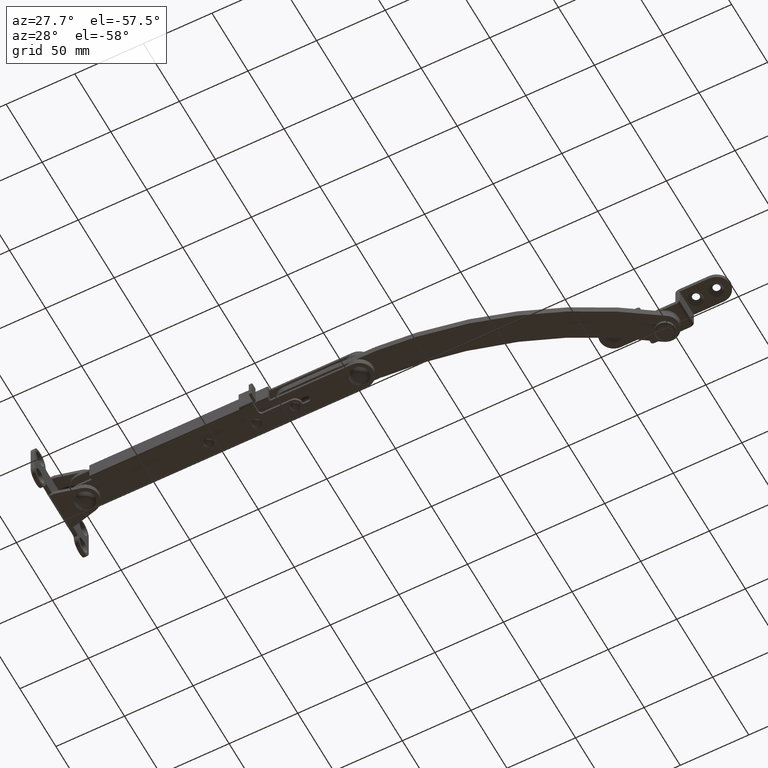
[diagram: clean part render]
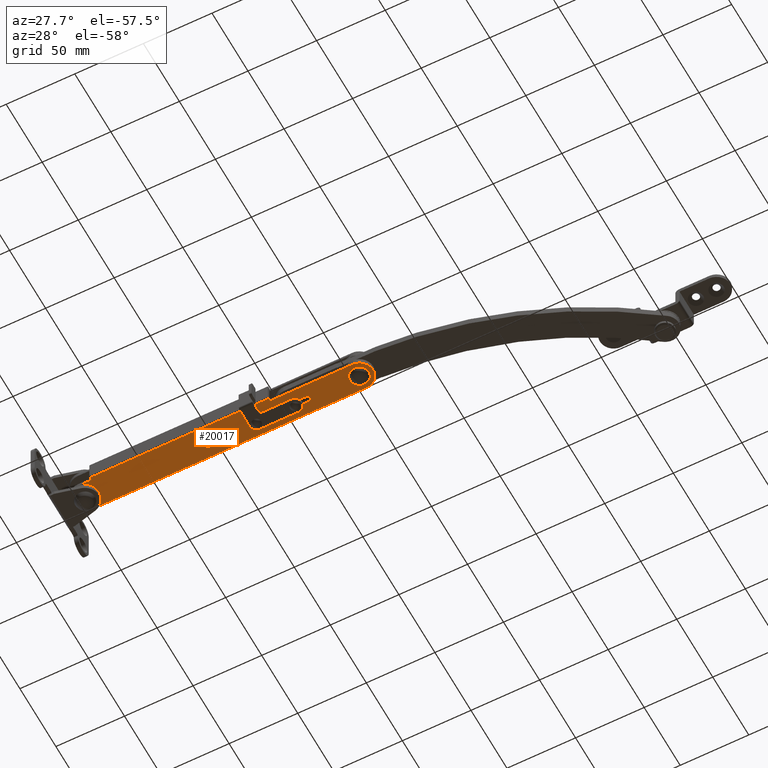
[diagram: same view with one face highlighted and labeled with its STEP entity id]
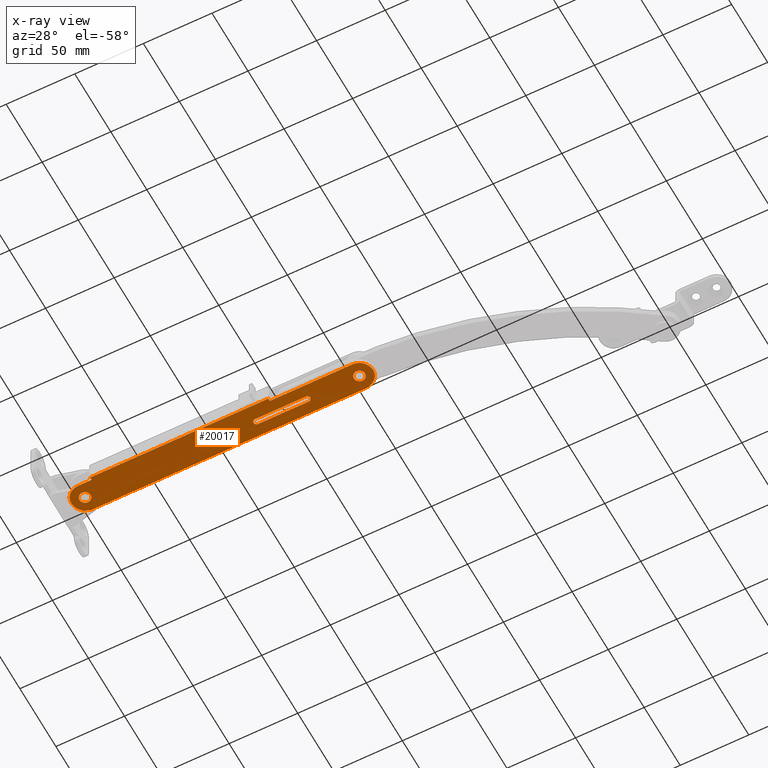
[diagram: x-ray of the same camera — body ghosted, the highlighted face saturated]
A machine part, auxiliary view. The second image highlights one B-rep face of the part: STEP entity #20017.
The next image is the same camera in x-ray: the body ghosted, the highlighted face saturated — about 0% of this face is hidden behind the body in this view.
In plain terms, the highlighted face is a freeform B-spline surface patch.
Its self-contained STEP definition (entity closure, byte-faithful):
#17808=CARTESIAN_POINT('',(90.017453074994364,-1.999923846093456,-7.0));
#17809=VERTEX_POINT('',#17808);
#17815=CARTESIAN_POINT('',(88.0,0.0,-7.0));
#17816=VERTEX_POINT('',#17815);
#17817=CARTESIAN_POINT('',(90.017453074994364,-1.999923846093456,-7.0));
#17818=CARTESIAN_POINT('',(90.008726705639262,-2.000000000000000,-7.000000000000001));
#17819=CARTESIAN_POINT('',(90.0,-2.0,-7.0));
#17820=CARTESIAN_POINT('',(88.0,-2.000000000000000,-6.999999999999999));
#17821=CARTESIAN_POINT('',(88.0,0.0,-7.0));
#17829=(BOUNDED_CURVE()B_SPLINE_CURVE(2,(#17817,#17818,#17819,#17820,#17821),.UNSPECIFIED.,.F.,.U.)B_SPLINE_CURVE_WITH_KNOTS((3,2,3),(0.248460104960835,0.250000000000000,0.500000000000000),.UNSPECIFIED.)CURVE()GEOMETRIC_REPRESENTATION_ITEM()RATIONAL_B_SPLINE_CURVE((0.996414026470741,0.998195900741376,1.0,0.707106781186548,1.0))REPRESENTATION_ITEM(''));
#17830=EDGE_CURVE('',#17809,#17816,#17829,.T.);
#17832=CARTESIAN_POINT('',(89.751743990182462,1.984532426943301,-7.0));
#17833=VERTEX_POINT('',#17832);
#17834=CARTESIAN_POINT('',(88.0,0.0,-7.0));
#17835=CARTESIAN_POINT('',(88.000000000000014,1.765397190155714,-7.000000000000002));
#17836=CARTESIAN_POINT('',(89.751743990182462,1.984532426943300,-7.000000000000001));
#17844=(BOUNDED_CURVE()B_SPLINE_CURVE(2,(#17834,#17835,#17836),.UNSPECIFIED.,.F.,.U.)B_SPLINE_CURVE_WITH_KNOTS((3,3),(0.500000000000000,0.728526070067681),.UNSPECIFIED.)CURVE()GEOMETRIC_REPRESENTATION_ITEM()RATIONAL_B_SPLINE_CURVE((1.0,0.732265055020354,0.954005428408589))REPRESENTATION_ITEM(''));
#17845=EDGE_CURVE('',#17816,#17833,#17844,.T.);
#17895=CARTESIAN_POINT('',(92.0,0.0,-7.0));
#17896=VERTEX_POINT('',#17895);
#17897=CARTESIAN_POINT('',(89.751743990182462,1.984532426943300,-7.000000000000001));
#17898=CARTESIAN_POINT('',(89.875390139208889,2.000000000000000,-6.999999999999999));
#17899=CARTESIAN_POINT('',(90.0,2.0,-7.0));
#17900=CARTESIAN_POINT('',(92.0,2.000000000000000,-6.999999999999999));
#17901=CARTESIAN_POINT('',(92.0,0.0,-7.0));
#17909=(BOUNDED_CURVE()B_SPLINE_CURVE(2,(#17897,#17898,#17899,#17900,#17901),.UNSPECIFIED.,.F.,.U.)B_SPLINE_CURVE_WITH_KNOTS((3,2,3),(0.728526070067681,0.750000000000000,1.0),.UNSPECIFIED.)CURVE()GEOMETRIC_REPRESENTATION_ITEM()RATIONAL_B_SPLINE_CURVE((0.954005428408591,0.974841726166195,1.0,0.707106781186548,1.0))REPRESENTATION_ITEM(''));
#17910=EDGE_CURVE('',#17833,#17896,#17909,.T.);
#17912=CARTESIAN_POINT('',(92.0,0.0,-7.0));
#17913=CARTESIAN_POINT('',(92.0,-1.982622413263590,-7.0));
#17914=CARTESIAN_POINT('',(90.017453074994364,-1.999923846093456,-7.0));
#17922=(BOUNDED_CURVE()B_SPLINE_CURVE(2,(#17912,#17913,#17914),.UNSPECIFIED.,.F.,.U.)B_SPLINE_CURVE_WITH_KNOTS((3,3),(0.0,0.248460104960835),.UNSPECIFIED.)CURVE()GEOMETRIC_REPRESENTATION_ITEM()RATIONAL_B_SPLINE_CURVE((1.0,0.708910880445171,0.996414026470741))REPRESENTATION_ITEM(''));
#17923=EDGE_CURVE('',#17896,#17809,#17922,.T.);
#18176=CARTESIAN_POINT('',(200.035311472118200,-4.049845788380660,-7.0));
#18177=VERTEX_POINT('',#18176);
#18183=CARTESIAN_POINT('',(195.949969000000010,0.0,-7.0));
#18184=VERTEX_POINT('',#18183);
#18185=CARTESIAN_POINT('',(200.035311472118280,-4.049845788380660,-7.0));
#18186=CARTESIAN_POINT('',(200.017640574173900,-4.050000000000000,-7.000000000000001));
#18187=CARTESIAN_POINT('',(199.999968999999990,-4.050000000000000,-7.0));
#18188=CARTESIAN_POINT('',(195.949969000000010,-4.050000000000001,-6.999999999999999));
#18189=CARTESIAN_POINT('',(195.949969000000010,0.0,-7.0));
#18197=(BOUNDED_CURVE()B_SPLINE_CURVE(2,(#18185,#18186,#18187,#18188,#18189),.UNSPECIFIED.,.F.,.U.)B_SPLINE_CURVE_WITH_KNOTS((3,2,3),(0.248460105373623,0.250000000000000,0.500000000000000),.UNSPECIFIED.)CURVE()GEOMETRIC_REPRESENTATION_ITEM()RATIONAL_B_SPLINE_CURVE((0.996414027426048,0.998195901224988,1.0,0.707106781186548,1.0))REPRESENTATION_ITEM(''));
#18198=EDGE_CURVE('',#18177,#18184,#18197,.T.);
#18200=CARTESIAN_POINT('',(199.497250589301590,4.018678165708835,-7.0));
#18201=VERTEX_POINT('',#18200);
#18202=CARTESIAN_POINT('',(195.949969000000010,0.0,-7.0));
#18203=CARTESIAN_POINT('',(195.949969000000100,3.574929326529240,-6.999999999999999));
#18204=CARTESIAN_POINT('',(199.497250589301640,4.018678165708835,-7.0));
#18212=(BOUNDED_CURVE()B_SPLINE_CURVE(2,(#18202,#18203,#18204),.UNSPECIFIED.,.F.,.U.)B_SPLINE_CURVE_WITH_KNOTS((3,3),(0.500000000000000,0.728526070838353),.UNSPECIFIED.)CURVE()GEOMETRIC_REPRESENTATION_ITEM()RATIONAL_B_SPLINE_CURVE((1.0,0.732265054117455,0.954005429904167))REPRESENTATION_ITEM(''));
#18213=EDGE_CURVE('',#18184,#18201,#18212,.T.);
#18263=CARTESIAN_POINT('',(204.049969000000000,0.0,-7.0));
#18264=VERTEX_POINT('',#18263);
#18265=CARTESIAN_POINT('',(199.497250589301700,4.018678165708835,-7.0));
#18266=CARTESIAN_POINT('',(199.747634041187670,4.050000000000000,-7.0));
#18267=CARTESIAN_POINT('',(199.999968999999990,4.050000000000000,-7.0));
#18268=CARTESIAN_POINT('',(204.049968999999980,4.050000000000001,-6.999999999999999));
#18269=CARTESIAN_POINT('',(204.049969000000000,0.0,-7.0));
#18277=(BOUNDED_CURVE()B_SPLINE_CURVE(2,(#18265,#18266,#18267,#18268,#18269),.UNSPECIFIED.,.F.,.U.)B_SPLINE_CURVE_WITH_KNOTS((3,2,3),(0.728526070838353,0.750000000000000,1.0),.UNSPECIFIED.)CURVE()GEOMETRIC_REPRESENTATION_ITEM()RATIONAL_B_SPLINE_CURVE((0.954005429904167,0.974841727069093,1.0,0.707106781186548,1.0))REPRESENTATION_ITEM(''));
#18278=EDGE_CURVE('',#18201,#18264,#18277,.T.);
#18280=CARTESIAN_POINT('',(204.049969000000000,0.0,-7.0));
#18281=CARTESIAN_POINT('',(204.049969000000000,-4.014810396267782,-6.999999999999998));
#18282=CARTESIAN_POINT('',(200.035311472118200,-4.049845788380660,-6.999999999999999));
#18290=(BOUNDED_CURVE()B_SPLINE_CURVE(2,(#18280,#18281,#18282),.UNSPECIFIED.,.F.,.U.)B_SPLINE_CURVE_WITH_KNOTS((3,3),(0.0,0.248460105373623),.UNSPECIFIED.)CURVE()GEOMETRIC_REPRESENTATION_ITEM()RATIONAL_B_SPLINE_CURVE((1.0,0.708910879961560,0.996414027426048))REPRESENTATION_ITEM(''));
#18291=EDGE_CURVE('',#18264,#18177,#18290,.T.);
#18544=CARTESIAN_POINT('',(0.035342472118203,-4.049845788380660,-7.0));
#18545=VERTEX_POINT('',#18544);
#18551=CARTESIAN_POINT('',(-4.050000000000000,0.0,-7.0));
#18552=VERTEX_POINT('',#18551);
#18553=CARTESIAN_POINT('',(0.035342472118203,-4.049845788380660,-7.000000000000001));
#18554=CARTESIAN_POINT('',(0.017671574173822,-4.050000000000000,-7.0));
#18555=CARTESIAN_POINT('',(0.0,-4.050000000000000,-7.0));
#18556=CARTESIAN_POINT('',(-4.050000000000001,-4.050000000000001,-6.999999999999999));
#18557=CARTESIAN_POINT('',(-4.050000000000000,0.0,-7.0));
#18565=(BOUNDED_CURVE()B_SPLINE_CURVE(2,(#18553,#18554,#18555,#18556,#18557),.UNSPECIFIED.,.F.,.U.)B_SPLINE_CURVE_WITH_KNOTS((3,2,3),(0.248460105373624,0.250000000000000,0.500000000000000),.UNSPECIFIED.)CURVE()GEOMETRIC_REPRESENTATION_ITEM()RATIONAL_B_SPLINE_CURVE((0.996414027426049,0.998195901224988,1.0,0.707106781186548,1.0))REPRESENTATION_ITEM(''));
#18566=EDGE_CURVE('',#18545,#18552,#18565,.T.);
#18568=CARTESIAN_POINT('',(-0.502718410698330,4.018678165708836,-7.000000000000001));
#18569=VERTEX_POINT('',#18568);
#18570=CARTESIAN_POINT('',(-4.050000000000000,0.0,-7.0));
#18571=CARTESIAN_POINT('',(-4.050000000000001,3.574929326529240,-6.999999999999999));
#18572=CARTESIAN_POINT('',(-0.502718410698330,4.018678165708837,-7.000000000000001));
#18580=(BOUNDED_CURVE()B_SPLINE_CURVE(2,(#18570,#18571,#18572),.UNSPECIFIED.,.F.,.U.)B_SPLINE_CURVE_WITH_KNOTS((3,3),(0.500000000000000,0.728526070838353),.UNSPECIFIED.)CURVE()GEOMETRIC_REPRESENTATION_ITEM()RATIONAL_B_SPLINE_CURVE((1.0,0.732265054117455,0.954005429904167))REPRESENTATION_ITEM(''));
#18581=EDGE_CURVE('',#18552,#18569,#18580,.T.);
#18631=CARTESIAN_POINT('',(4.050000000000000,0.0,-7.0));
#18632=VERTEX_POINT('',#18631);
#18633=CARTESIAN_POINT('',(-0.502718410698330,4.018678165708836,-7.000000000000001));
#18634=CARTESIAN_POINT('',(-0.252334958812306,4.050000000000000,-7.0));
#18635=CARTESIAN_POINT('',(0.0,4.050000000000000,-7.0));
#18636=CARTESIAN_POINT('',(4.050000000000001,4.050000000000001,-6.999999999999999));
#18637=CARTESIAN_POINT('',(4.050000000000000,0.0,-7.0));
#18645=(BOUNDED_CURVE()B_SPLINE_CURVE(2,(#18633,#18634,#18635,#18636,#18637),.UNSPECIFIED.,.F.,.U.)B_SPLINE_CURVE_WITH_KNOTS((3,2,3),(0.728526070838354,0.750000000000000,1.0),.UNSPECIFIED.)CURVE()GEOMETRIC_REPRESENTATION_ITEM()RATIONAL_B_SPLINE_CURVE((0.954005429904168,0.974841727069094,1.0,0.707106781186548,1.0))REPRESENTATION_ITEM(''));
#18646=EDGE_CURVE('',#18569,#18632,#18645,.T.);
#18648=CARTESIAN_POINT('',(4.050000000000000,0.0,-7.0));
#18649=CARTESIAN_POINT('',(4.050000000000001,-4.014810396267790,-7.000000000000001));
#18650=CARTESIAN_POINT('',(0.035342472118203,-4.049845788380660,-7.000000000000001));
#18658=(BOUNDED_CURVE()B_SPLINE_CURVE(2,(#18648,#18649,#18650),.UNSPECIFIED.,.F.,.U.)B_SPLINE_CURVE_WITH_KNOTS((3,3),(0.0,0.248460105373624),.UNSPECIFIED.)CURVE()GEOMETRIC_REPRESENTATION_ITEM()RATIONAL_B_SPLINE_CURVE((1.0,0.708910879961559,0.996414027426049))REPRESENTATION_ITEM(''));
#18659=EDGE_CURVE('',#18632,#18545,#18658,.T.);
#18876=CARTESIAN_POINT('',(140.0,-12.0,-7.0));
#18877=VERTEX_POINT('',#18876);
#18898=CARTESIAN_POINT('',(10.0,-12.0,-7.0));
#18899=VERTEX_POINT('',#18898);
#18913=CARTESIAN_POINT('',(140.0,-12.0,-7.0));
#18914=CARTESIAN_POINT('',(10.0,-12.0,-7.0));
#18915=QUASI_UNIFORM_CURVE('',1,(#18913,#18914),.UNSPECIFIED.,.F.,.U.);
#18916=EDGE_CURVE('',#18877,#18899,#18915,.T.);
#18996=CARTESIAN_POINT('',(161.999969146607500,-2.100006000000045,-7.0));
#18997=VERTEX_POINT('',#18996);
#19003=CARTESIAN_POINT('',(125.0,-2.100006000000000,-7.0));
#19004=VERTEX_POINT('',#19003);
#19005=CARTESIAN_POINT('',(161.999969146607500,-2.100006000000045,-7.0));
#19006=CARTESIAN_POINT('',(125.0,-2.100006000000000,-7.0));
#19007=QUASI_UNIFORM_CURVE('',1,(#19005,#19006),.UNSPECIFIED.,.F.,.U.);
#19008=EDGE_CURVE('',#18997,#19004,#19007,.T.);
#19053=CARTESIAN_POINT('',(161.999968999999990,2.100006000000095,-7.0));
#19054=VERTEX_POINT('',#19053);
#19060=CARTESIAN_POINT('',(161.999968999999990,2.100006000000095,-7.0));
#19061=CARTESIAN_POINT('',(164.099968926696480,2.100005999999885,-7.0));
#19062=CARTESIAN_POINT('',(164.099969000000190,0.000000073303566,-7.0));
#19063=CARTESIAN_POINT('',(164.099969073304040,-2.100005853392756,-7.0));
#19064=CARTESIAN_POINT('',(161.999969146607500,-2.100006000000045,-7.0));
#19072=(BOUNDED_CURVE()B_SPLINE_CURVE(2,(#19060,#19061,#19062,#19063,#19064),.UNSPECIFIED.,.F.,.U.)B_SPLINE_CURVE_WITH_KNOTS((3,2,3),(0.0,0.500000000000000,1.0),.UNSPECIFIED.)CURVE()GEOMETRIC_REPRESENTATION_ITEM()RATIONAL_B_SPLINE_CURVE((1.0,0.707106793527841,1.0,0.707106793527841,1.0))REPRESENTATION_ITEM(''));
#19073=EDGE_CURVE('',#19054,#18997,#19072,.T.);
#19091=CARTESIAN_POINT('',(125.0,2.100006000000095,-7.0));
#19092=VERTEX_POINT('',#19091);
#19098=CARTESIAN_POINT('',(125.0,2.100006000000095,-7.0));
#19099=CARTESIAN_POINT('',(161.999968999999990,2.100006000000095,-7.0));
#19100=QUASI_UNIFORM_CURVE('',1,(#19098,#19099),.UNSPECIFIED.,.F.,.U.);
#19101=EDGE_CURVE('',#19092,#19054,#19100,.T.);
#19141=CARTESIAN_POINT('',(125.0,-2.100006000000000,-7.0));
#19142=CARTESIAN_POINT('',(122.899999999999990,-2.100006000000000,-6.999999999999999));
#19143=CARTESIAN_POINT('',(122.900000000000010,4.751755E-014,-7.0));
#19144=CARTESIAN_POINT('',(122.899999999999990,2.100006000000095,-6.999999999999999));
#19145=CARTESIAN_POINT('',(125.0,2.100006000000095,-7.0));
#19153=(BOUNDED_CURVE()B_SPLINE_CURVE(2,(#19141,#19142,#19143,#19144,#19145),.UNSPECIFIED.,.F.,.U.)B_SPLINE_CURVE_WITH_KNOTS((3,2,3),(0.0,0.500000000000000,1.0),.UNSPECIFIED.)CURVE()GEOMETRIC_REPRESENTATION_ITEM()RATIONAL_B_SPLINE_CURVE((1.0,0.707106781186548,1.0,0.707106781186548,1.0))REPRESENTATION_ITEM(''));
#19154=EDGE_CURVE('',#19004,#19092,#19153,.T.);
#19570=CARTESIAN_POINT('',(0.0,-9.999999999999799,-7.0));
#19571=VERTEX_POINT('',#19570);
#19577=CARTESIAN_POINT('',(10.0,-9.999999999999799,-7.0));
#19578=VERTEX_POINT('',#19577);
#19579=CARTESIAN_POINT('',(10.0,-9.999999999999799,-7.0));
#19580=CARTESIAN_POINT('',(0.0,-9.999999999999799,-7.0));
#19581=QUASI_UNIFORM_CURVE('',1,(#19579,#19580),.UNSPECIFIED.,.F.,.U.);
#19582=EDGE_CURVE('',#19578,#19571,#19581,.T.);
#19606=CARTESIAN_POINT('',(140.0,-9.999999999999799,-7.0));
#19607=VERTEX_POINT('',#19606);
#19613=CARTESIAN_POINT('',(199.999968831412500,-9.999999999999799,-7.0));
#19614=VERTEX_POINT('',#19613);
#19615=CARTESIAN_POINT('',(199.999968831412500,-9.999999999999799,-7.0));
#19616=CARTESIAN_POINT('',(140.0,-9.999999999999799,-7.0));
#19617=QUASI_UNIFORM_CURVE('',1,(#19615,#19616),.UNSPECIFIED.,.F.,.U.);
#19618=EDGE_CURVE('',#19614,#19607,#19617,.T.);
#19666=CARTESIAN_POINT('',(199.991055733914490,10.0,-7.0));
#19667=VERTEX_POINT('',#19666);
#19668=CARTESIAN_POINT('',(199.991055733914490,10.000000000000229,-7.0));
#19669=CARTESIAN_POINT('',(205.766538211756430,10.005147842232377,-7.0));
#19670=CARTESIAN_POINT('',(208.657252168175600,5.005148124802156,-7.0));
#19671=CARTESIAN_POINT('',(211.547966124594720,0.005148407371938,-7.0));
#19672=CARTESIAN_POINT('',(208.661709864026790,-4.997425844997637,-7.0));
#19673=CARTESIAN_POINT('',(205.775453603458830,-10.000000097367215,-7.0));
#19674=CARTESIAN_POINT('',(199.999968831412500,-9.999999999999796,-7.0));
#19682=(BOUNDED_CURVE()B_SPLINE_CURVE(2,(#19668,#19669,#19670,#19671,#19672,#19673,#19674),.UNSPECIFIED.,.F.,.U.)B_SPLINE_CURVE_WITH_KNOTS((3,2,2,3),(0.0,0.333333333333333,0.666666666666667,1.0),.UNSPECIFIED.)CURVE()GEOMETRIC_REPRESENTATION_ITEM()RATIONAL_B_SPLINE_CURVE((1.0,0.865951115611089,1.0,0.865951115611089,1.0,0.865951115611089,1.0))REPRESENTATION_ITEM(''));
#19683=EDGE_CURVE('',#19667,#19614,#19682,.T.);
#19706=CARTESIAN_POINT('',(0.0,10.0,-7.0));
#19707=VERTEX_POINT('',#19706);
#19708=CARTESIAN_POINT('',(0.0,10.0,-7.0));
#19709=CARTESIAN_POINT('',(199.991055733914490,10.0,-7.0));
#19710=QUASI_UNIFORM_CURVE('',1,(#19708,#19709),.UNSPECIFIED.,.F.,.U.);
#19711=EDGE_CURVE('',#19707,#19667,#19710,.T.);
#19755=CARTESIAN_POINT('',(0.0,-9.999999999999799,-7.0));
#19756=CARTESIAN_POINT('',(-10.000000000000002,-10.000000000000002,-6.999999999999999));
#19757=CARTESIAN_POINT('',(-10.0,0.0,-7.0));
#19758=CARTESIAN_POINT('',(-10.000000000000002,10.000000000000002,-6.999999999999999));
#19759=CARTESIAN_POINT('',(0.0,10.0,-7.0));
#19767=(BOUNDED_CURVE()B_SPLINE_CURVE(2,(#19755,#19756,#19757,#19758,#19759),.UNSPECIFIED.,.F.,.U.)B_SPLINE_CURVE_WITH_KNOTS((3,2,3),(0.0,0.500000000000000,1.0),.UNSPECIFIED.)CURVE()GEOMETRIC_REPRESENTATION_ITEM()RATIONAL_B_SPLINE_CURVE((1.0,0.707106781186548,1.0,0.707106781186548,1.0))REPRESENTATION_ITEM(''));
#19768=EDGE_CURVE('',#19571,#19707,#19767,.T.);
#19807=CARTESIAN_POINT('',(140.0,-9.999999999999799,-7.0));
#19808=CARTESIAN_POINT('',(140.0,-12.0,-7.0));
#19809=QUASI_UNIFORM_CURVE('',1,(#19807,#19808),.UNSPECIFIED.,.F.,.U.);
#19810=EDGE_CURVE('',#19607,#18877,#19809,.T.);
#19869=CARTESIAN_POINT('',(10.0,-12.0,-7.0));
#19870=CARTESIAN_POINT('',(10.0,-9.999999999999799,-7.0));
#19871=QUASI_UNIFORM_CURVE('',1,(#19869,#19870),.UNSPECIFIED.,.F.,.U.);
#19872=EDGE_CURVE('',#18899,#19578,#19871,.T.);
#19978=CARTESIAN_POINT('',(-20.928792148057141,-13.098899957359730,-7.0));
#19979=CARTESIAN_POINT('',(220.929173234428900,-13.098899957359730,-7.0));
#19980=CARTESIAN_POINT('',(-20.928792148057141,11.098900547445711,-7.0));
#19981=CARTESIAN_POINT('',(220.929173234428900,11.098900547445711,-7.0));
#19982=B_SPLINE_SURFACE_WITH_KNOTS('',1,1,((#19978,#19980),(#19979,#19981)),.UNSPECIFIED.,.F.,.F.,.U.,(2,2),(2,2),(0.0,241.857965382486100),(0.0,24.197800504805439),.UNSPECIFIED.);
#19983=ORIENTED_EDGE('',*,*,#19810,.T.);
#19984=ORIENTED_EDGE('',*,*,#18916,.T.);
#19985=ORIENTED_EDGE('',*,*,#19872,.T.);
#19986=ORIENTED_EDGE('',*,*,#19582,.T.);
#19987=ORIENTED_EDGE('',*,*,#19768,.T.);
#19988=ORIENTED_EDGE('',*,*,#19711,.T.);
#19989=ORIENTED_EDGE('',*,*,#19683,.T.);
#19990=ORIENTED_EDGE('',*,*,#19618,.T.);
#19991=EDGE_LOOP('',(#19983,#19984,#19985,#19986,#19987,#19988,#19989,#19990));
#19992=FACE_OUTER_BOUND('',#19991,.T.);
#19993=ORIENTED_EDGE('',*,*,#19154,.F.);
#19994=ORIENTED_EDGE('',*,*,#19008,.F.);
#19995=ORIENTED_EDGE('',*,*,#19073,.F.);
#19996=ORIENTED_EDGE('',*,*,#19101,.F.);
#19997=EDGE_LOOP('',(#19993,#19994,#19995,#19996));
#19998=FACE_BOUND('',#19997,.T.);
#19999=ORIENTED_EDGE('',*,*,#18659,.F.);
#20000=ORIENTED_EDGE('',*,*,#18646,.F.);
#20001=ORIENTED_EDGE('',*,*,#18581,.F.);
#20002=ORIENTED_EDGE('',*,*,#18566,.F.);
#20003=EDGE_LOOP('',(#19999,#20000,#20001,#20002));
#20004=FACE_BOUND('',#20003,.T.);
#20005=ORIENTED_EDGE('',*,*,#18291,.F.);
#20006=ORIENTED_EDGE('',*,*,#18278,.F.);
#20007=ORIENTED_EDGE('',*,*,#18213,.F.);
#20008=ORIENTED_EDGE('',*,*,#18198,.F.);
#20009=EDGE_LOOP('',(#20005,#20006,#20007,#20008));
#20010=FACE_BOUND('',#20009,.T.);
#20011=ORIENTED_EDGE('',*,*,#17923,.F.);
#20012=ORIENTED_EDGE('',*,*,#17910,.F.);
#20013=ORIENTED_EDGE('',*,*,#17845,.F.);
#20014=ORIENTED_EDGE('',*,*,#17830,.F.);
#20015=EDGE_LOOP('',(#20011,#20012,#20013,#20014));
#20016=FACE_BOUND('',#20015,.T.);
#20017=ADVANCED_FACE('',(#19992,#19998,#20004,#20010,#20016),#19982,.F.);